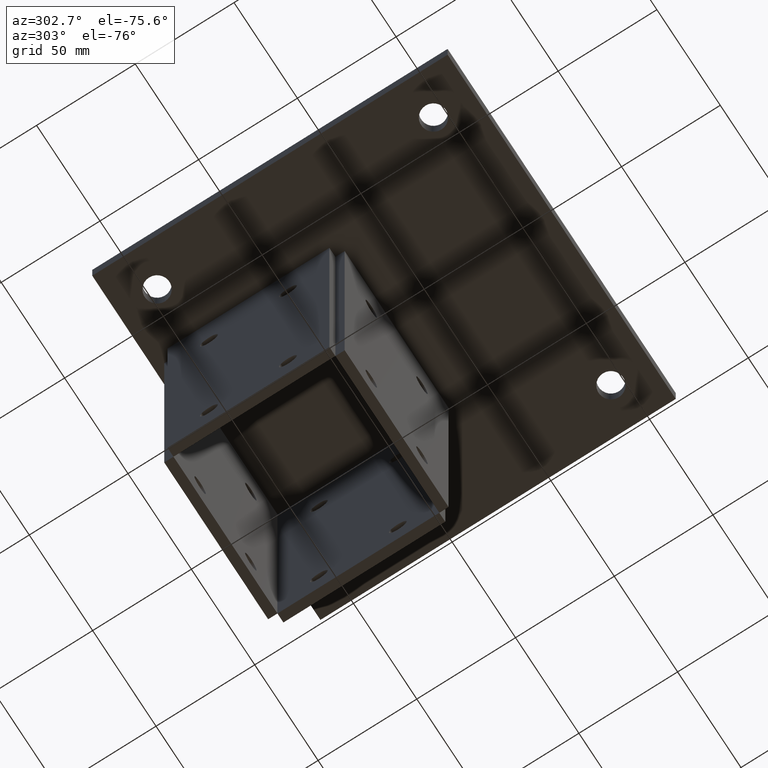
[diagram: clean part render]
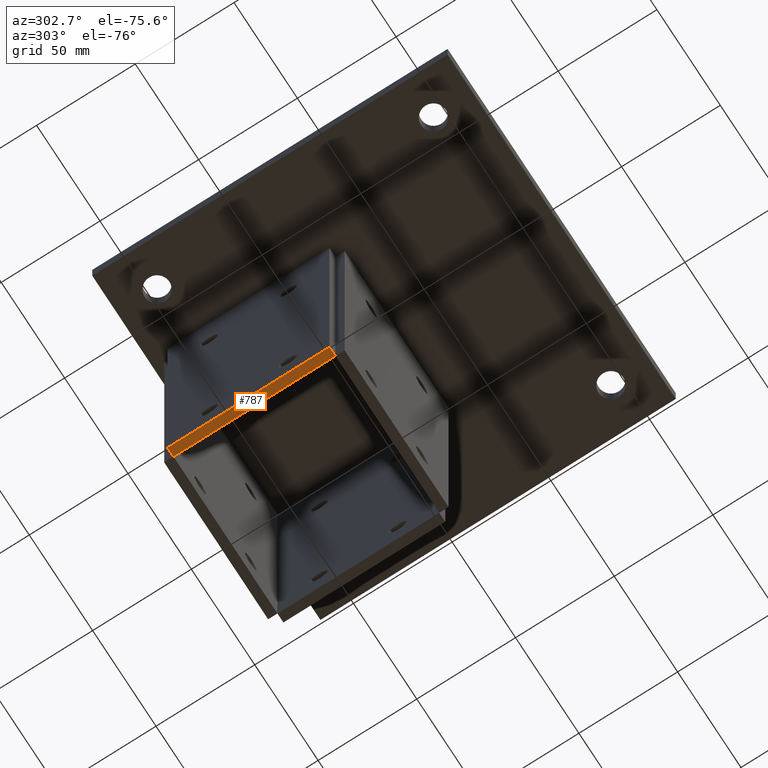
[diagram: same view with one face highlighted and labeled with its STEP entity id]
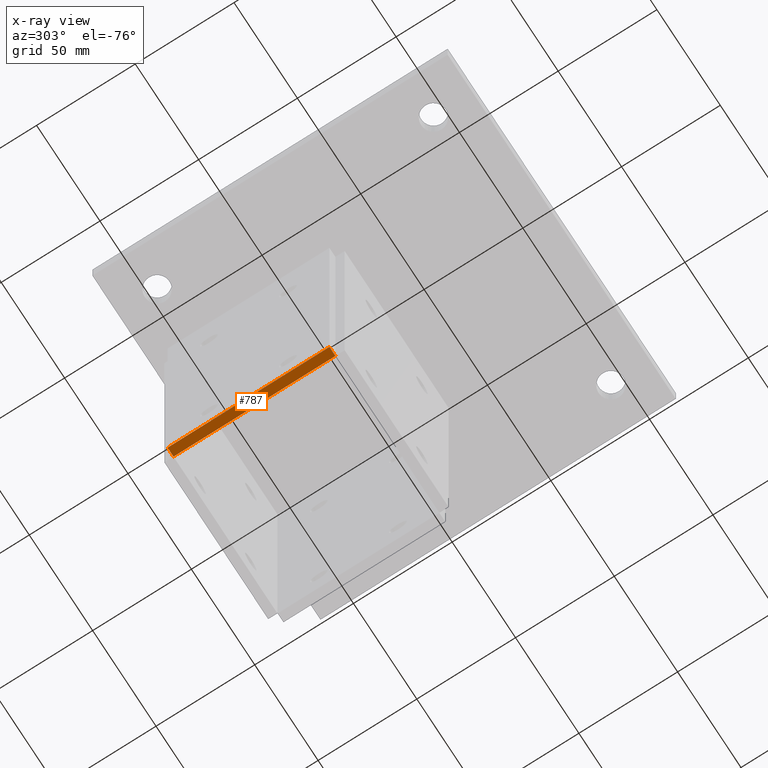
[diagram: x-ray of the same camera — body ghosted, the highlighted face saturated]
A machine part, auxiliary view. The second image highlights one B-rep face of the part: STEP entity #787.
The next image is the same camera in x-ray: the body ghosted, the highlighted face saturated — about 0% of this face is hidden behind the body in this view.
In plain terms, the highlighted planar face has unit normal (0, 0, 1).
Its self-contained STEP definition (entity closure, byte-faithful):
#256 = CARTESIAN_POINT ( 'NONE',  ( 0.0000000000000000000, 170.0000000000000000, 2.350000000000000100 ) ) ;
#257 = DIRECTION ( 'NONE',  ( 0.0000000000000000000, 0.0000000000000000000, 1.000000000000000000 ) ) ;
#264 = CARTESIAN_POINT ( 'NONE',  ( -82.00000000000000000, 170.0000000000000000, 2.350000000000000100 ) ) ;
#265 = DIRECTION ( 'NONE',  ( 0.0000000000000000000, 0.0000000000000000000, 1.000000000000000000 ) ) ;
#266 = CARTESIAN_POINT ( 'NONE',  ( -41.00000000000000000, 170.0000000000000000, 4.700000000000000200 ) ) ;
#267 = DIRECTION ( 'NONE',  ( -1.000000000000000000, -0.0000000000000000000, -0.0000000000000000000 ) ) ;
#268 = CARTESIAN_POINT ( 'NONE',  ( -41.00000000000000000, 170.0000000000000000, 0.0000000000000000000 ) ) ;
#269 = DIRECTION ( 'NONE',  ( -1.000000000000000000, -0.0000000000000000000, -0.0000000000000000000 ) ) ;
#291 = PLANE ( 'NONE',  #1312 ) ;
#292 = CARTESIAN_POINT ( 'NONE',  ( -82.00000000000000000, 170.0000000000000000, 0.0000000000000000000 ) ) ;
#293 = DIRECTION ( 'NONE',  ( 0.0000000000000000000, -1.000000000000000000, 0.0000000000000000000 ) ) ;
#294 = DIRECTION ( 'NONE',  ( 1.000000000000000000, 0.0000000000000000000, 0.0000000000000000000 ) ) ;
#556 = VERTEX_POINT ( 'NONE', #1266 ) ;
#615 = EDGE_CURVE ( 'NONE', #847, #556, #1108, .T. ) ;
#619 = EDGE_CURVE ( 'NONE', #841, #843, #777, .T. ) ;
#620 = EDGE_CURVE ( 'NONE', #556, #843, #741, .T. ) ;
#621 = EDGE_CURVE ( 'NONE', #847, #841, #774, .T. ) ;
#741 = LINE ( 'NONE', #266, #743 ) ;
#743 = VECTOR ( 'NONE', #267, 1000.000000000000000 ) ;
#749 = VECTOR ( 'NONE', #269, 1000.000000000000000 ) ;
#758 = FACE_OUTER_BOUND ( 'NONE', #1139, .T. ) ;
#773 = VECTOR ( 'NONE', #257, 1000.000000000000000 ) ;
#774 = LINE ( 'NONE', #268, #749 ) ;
#776 = VECTOR ( 'NONE', #265, 1000.000000000000000 ) ;
#777 = LINE ( 'NONE', #264, #776 ) ;
#787 = ADVANCED_FACE ( 'NONE', ( #758 ), #291, .F. ) ;
#804 = ORIENTED_EDGE ( 'NONE', *, *, #619, .T. ) ;
#807 = ORIENTED_EDGE ( 'NONE', *, *, #620, .F. ) ;
#809 = ORIENTED_EDGE ( 'NONE', *, *, #615, .F. ) ;
#811 = ORIENTED_EDGE ( 'NONE', *, *, #621, .T. ) ;
#841 = VERTEX_POINT ( 'NONE', #1231 ) ;
#843 = VERTEX_POINT ( 'NONE', #1232 ) ;
#847 = VERTEX_POINT ( 'NONE', #1234 ) ;
#1108 = LINE ( 'NONE', #256, #773 ) ;
#1139 = EDGE_LOOP ( 'NONE', ( #804, #807, #809, #811 ) ) ;
#1231 = CARTESIAN_POINT ( 'NONE',  ( -82.00000000000000000, 170.0000000000000000, 0.0000000000000000000 ) ) ;
#1232 = CARTESIAN_POINT ( 'NONE',  ( -82.00000000000000000, 170.0000000000000000, 4.700000000000000200 ) ) ;
#1234 = CARTESIAN_POINT ( 'NONE',  ( 0.0000000000000000000, 170.0000000000000000, 0.0000000000000000000 ) ) ;
#1266 = CARTESIAN_POINT ( 'NONE',  ( 0.0000000000000000000, 170.0000000000000000, 4.700000000000000200 ) ) ;
#1312 = AXIS2_PLACEMENT_3D ( 'NONE', #292, #293, #294 ) ;